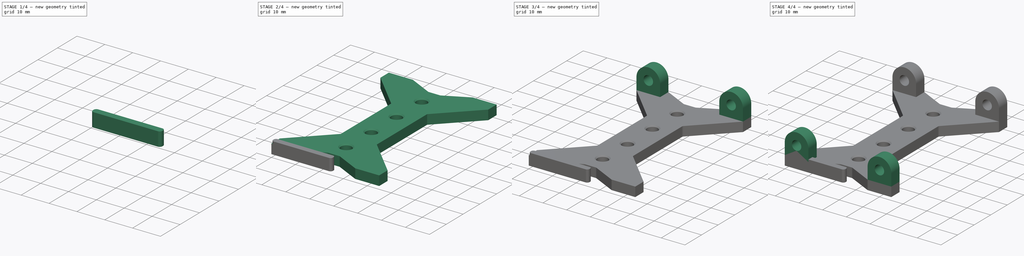
[diagram: build sequence overview — one tinted view per stage of 4, left to right]
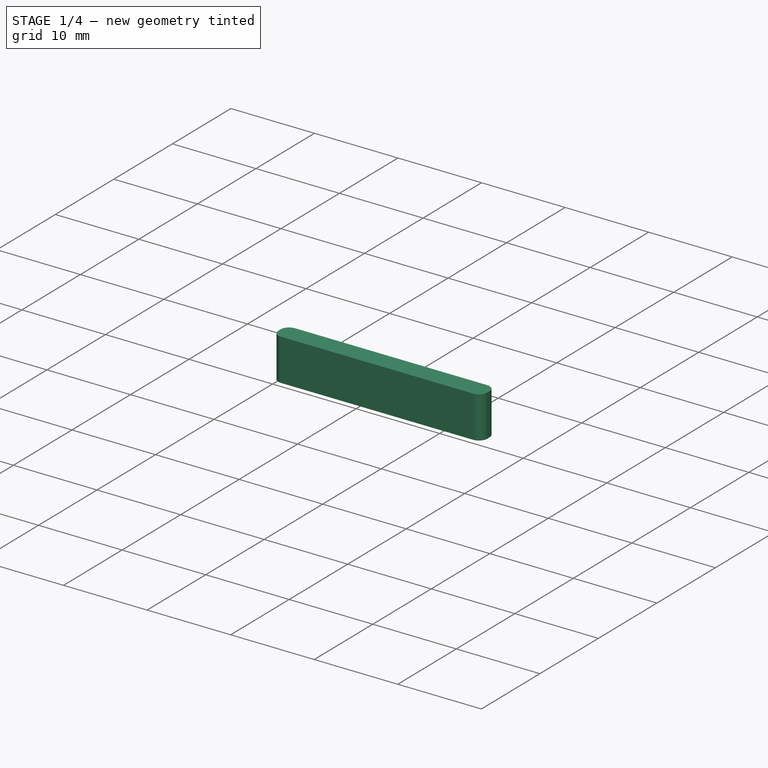
[diagram: stage 1 of 4 — iso view after this stage's code; geometry added in this stage tinted green]
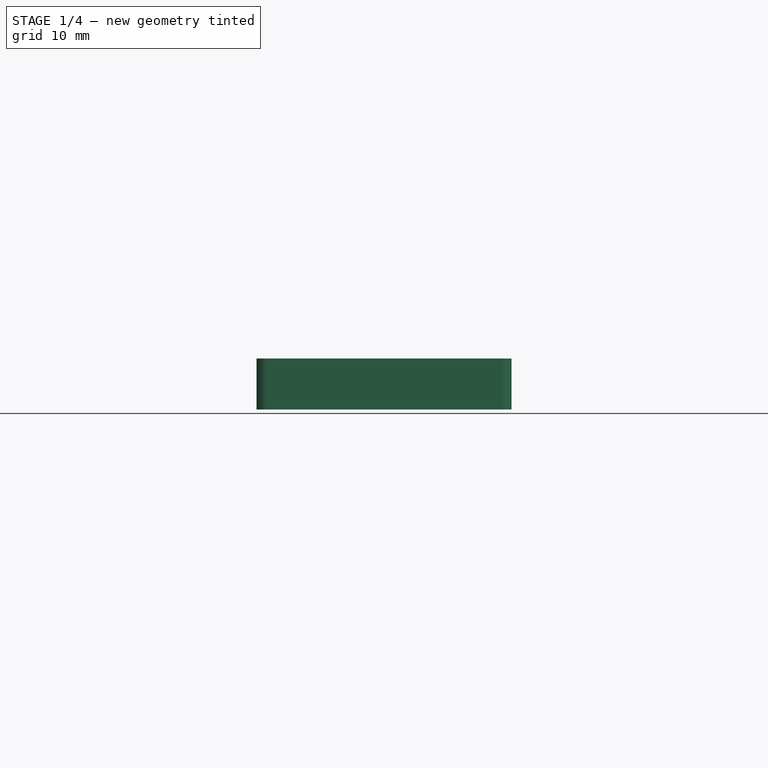
[diagram: stage 1 of 4 — front view after this stage's code; geometry added in this stage tinted green]
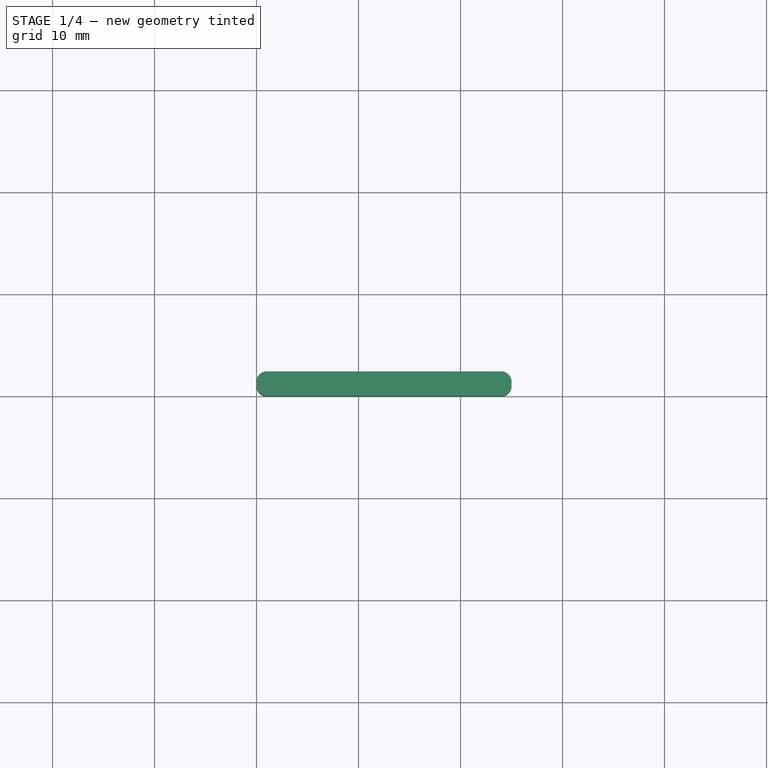
[diagram: stage 1 of 4 — top view after this stage's code; geometry added in this stage tinted green]
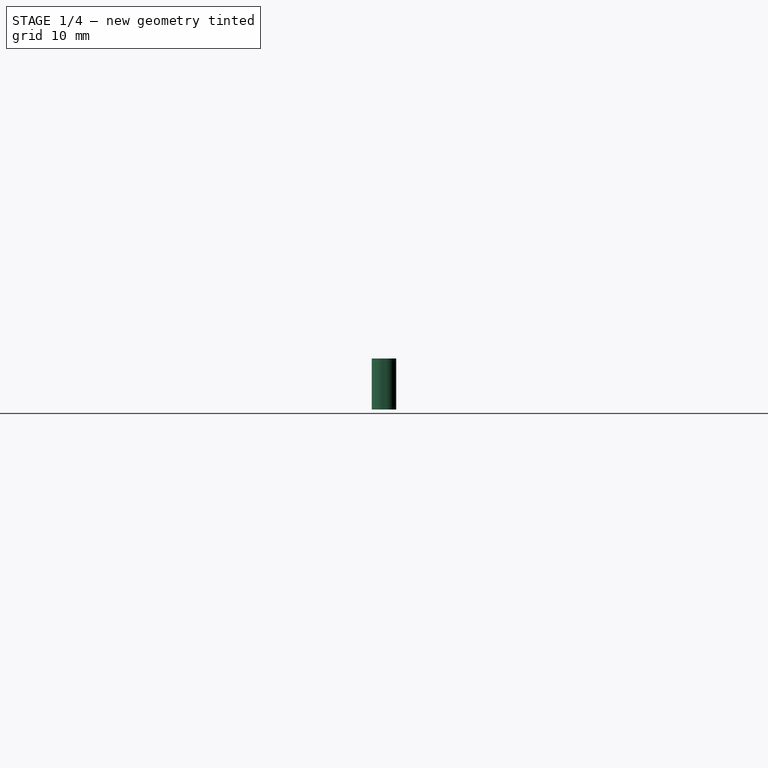
[diagram: stage 1 of 4 — right view after this stage's code; geometry added in this stage tinted green]
FCSTD DOCUMENT  (FreeCAD 0.19R24291 (Git))
Label: plotter-e-carridge
License: All rights reserved
LicenseURL: http://en.wikipedia.org/wiki/All_rights_reserved
objects: Part::Extrusion×4, Sketcher::SketchObject×3, PartDesign::Pad×2, PartDesign::Fillet×2, PartDesign::Body×2, PartDesign::Chamfer×1, App::Part×1
note: 19 computed .brp shape members not serialized (recipe doc carries the construction recipe); baked Part::Feature solids carry a one-line shape summary decoded from their .brp

FEATURE [PartDesign::Body] Body  label="CarridgeFrame"
  Group = -> [Sketch003,Pad,Chamfer,Fillet]
  Origin = -> Origin
  Tip = -> Fillet
FEATURE [Sketcher::SketchObject] Sketch004  label="ServoRidgeSketch"
  FullyConstrained = true
  MapMode = 5
  Placement = pos=(0,0,0) rot=(1,0,0;1.5708rad)
  sketch-geometry (4):
    g0: LineSegment StartX=0 StartY=0 StartZ=0 EndX=25 EndY=0 EndZ=0
    g1: LineSegment StartX=25 StartY=0 StartZ=0 EndX=25 EndY=5 EndZ=0
    g2: LineSegment StartX=25 StartY=5 StartZ=0 EndX=0 EndY=5 EndZ=0
    g3: LineSegment StartX=0 StartY=5 StartZ=0 EndX=0 EndY=0 EndZ=0
  constraints (11):
    c: Coincident(g0,g1)
    c: Coincident(g1,g2)
    c: Coincident(g2,g3)
    c: Coincident(g3,g0)
    c: Horizontal(g0)
    c: Horizontal(g2)
    c: Vertical(g1)
    c: Vertical(g3)
    c: Coincident(g-1,g0)
    c: DistanceX(g2,g2) = 25
    c: DistanceY(g1,g1) = 5
FEATURE [PartDesign::Pad] Pad001  label="ServoRidgePad"
  AllowMultiFace = false
  Direction = (1,1,1)
  Length = 2.4
  Length2 = 100
  Placement = pos=(0,0,0) rot=(1,0,0;1.5708rad)
  Profile = -> Sketch004
  Reversed = true
  Type = 0
FEATURE [PartDesign::Fillet] Fillet001  label="ServoRidgeFillet"
  Base = -> Pad001 [Edge12,Edge11,Edge7,Edge6]
  BaseFeature = -> Pad001
  Placement = pos=(0,0,0) rot=(1,0,0;1.5708rad)
  Radius = 1
  SupportTransform = false
FEATURE [PartDesign::Body] Body001  label="ServoRidge"
  Group = -> [Sketch004,Pad001,Fillet001]
  Origin = -> Origin005
  Placement = pos=(10,7.4,4) rot=(0,0,1;0rad)
  Tip = -> Fillet001
FEATURE [App::Part] Part  label="ECarridge"
  Group = -> [Sketch,Extrude001,Extrude002,Extrude003,Extrude004,Body,Body001]
  Origin = -> Origin004
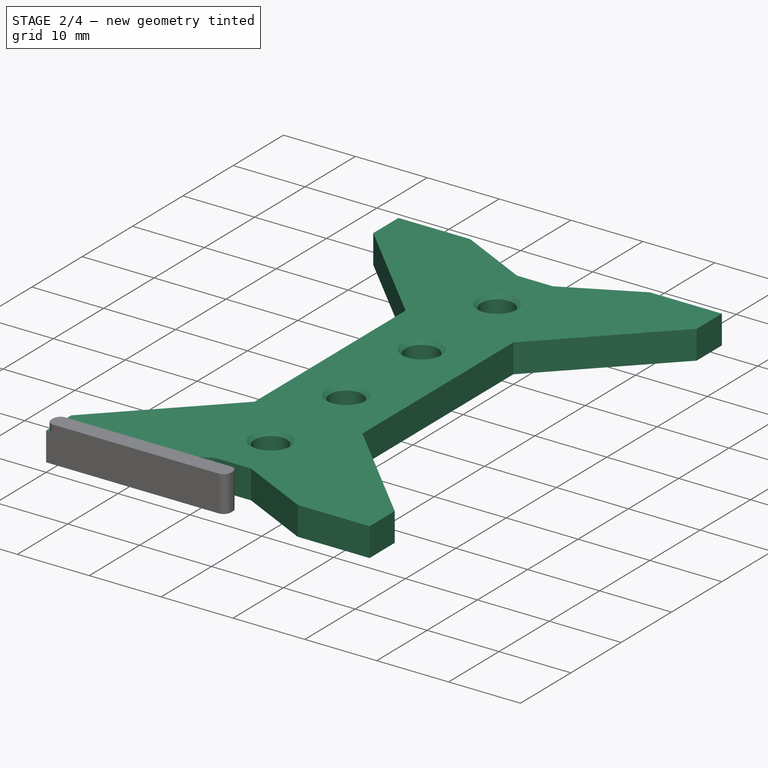
[diagram: stage 2 of 4 — iso view after this stage's code; geometry added in this stage tinted green]
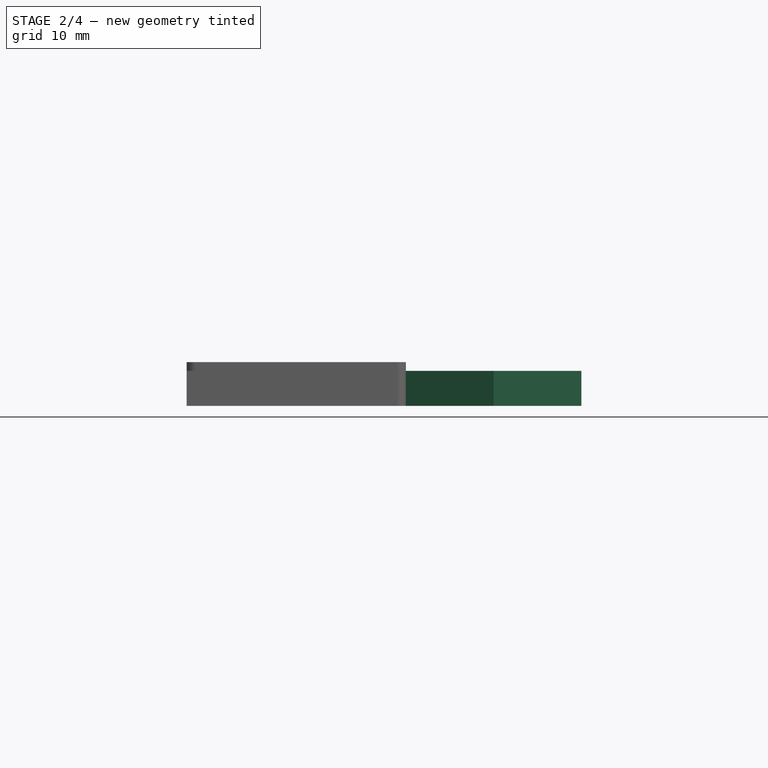
[diagram: stage 2 of 4 — front view after this stage's code; geometry added in this stage tinted green]
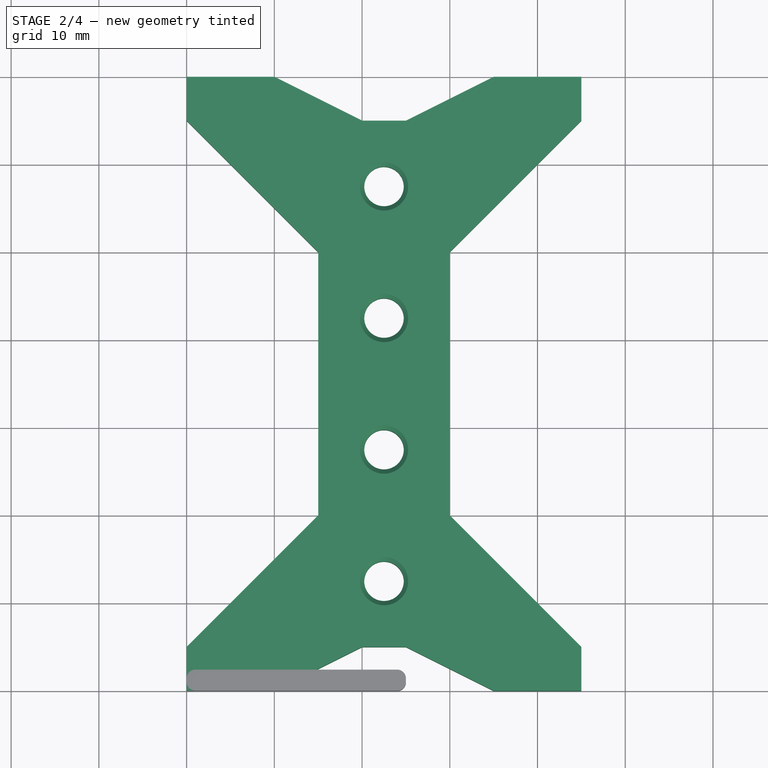
[diagram: stage 2 of 4 — top view after this stage's code; geometry added in this stage tinted green]
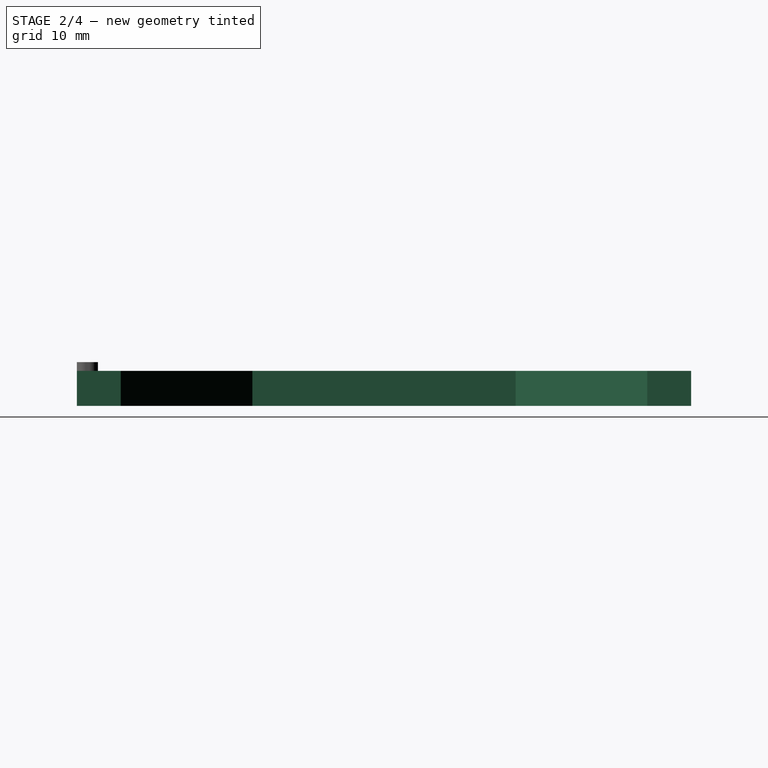
[diagram: stage 2 of 4 — right view after this stage's code; geometry added in this stage tinted green]
FEATURE [Sketcher::SketchObject] Sketch003  label="CarridgeFrameSketch"
  FullyConstrained = true
  MapMode = 5
  expr: Constraints[66] = .Constraints.Width / 2
  sketch-geometry (24):
    g0: LineSegment StartX=0 StartY=0 StartZ=0 EndX=10 EndY=0 EndZ=0
    g1: LineSegment StartX=10 StartY=0 StartZ=0 EndX=20 EndY=5 EndZ=0
    g2: LineSegment StartX=20 StartY=5 StartZ=0 EndX=25 EndY=5 EndZ=0
    g3: LineSegment StartX=25 StartY=5 StartZ=0 EndX=35 EndY=0 EndZ=0
    g4: LineSegment StartX=35 StartY=0 StartZ=0 EndX=45 EndY=0 EndZ=0
    g5: LineSegment StartX=45 StartY=0 StartZ=0 EndX=45 EndY=5 EndZ=0
    g6: LineSegment StartX=45 StartY=5 StartZ=0 EndX=30 EndY=20 EndZ=0
    g7: LineSegment StartX=30 StartY=20 StartZ=0 EndX=30 EndY=50 EndZ=0
    g8: LineSegment StartX=30 StartY=50 StartZ=0 EndX=45 EndY=65 EndZ=0
    g9: LineSegment StartX=45 StartY=65 StartZ=0 EndX=45 EndY=70 EndZ=0
    g10: LineSegment StartX=45 StartY=70 StartZ=0 EndX=35 EndY=70 EndZ=0
    g11: LineSegment StartX=35 StartY=70 StartZ=0 EndX=25 EndY=65 EndZ=0
    g12: LineSegment StartX=25 StartY=65 StartZ=0 EndX=20 EndY=65 EndZ=0
    g13: LineSegment StartX=20 StartY=65 StartZ=0 EndX=10 EndY=70 EndZ=0
    g14: LineSegment StartX=10 StartY=70 StartZ=0 EndX=0 EndY=70 EndZ=0
    g15: LineSegment StartX=0 StartY=70 StartZ=0 EndX=0 EndY=65 EndZ=0
    g16: LineSegment StartX=0 StartY=65 StartZ=0 EndX=15 EndY=50 EndZ=0
    g17: LineSegment StartX=15 StartY=50 StartZ=0 EndX=15 EndY=20 EndZ=0
    g18: LineSegment StartX=15 StartY=20 StartZ=0 EndX=0 EndY=5 EndZ=0
    g19: LineSegment StartX=0 StartY=5 StartZ=0 EndX=0 EndY=0 EndZ=0
    g20: Circle CenterX=22.5 CenterY=57.5 CenterZ=0 NormalX=0 NormalY=0 NormalZ=1 AngleXU=0 Radius=2.25
    g21: Circle CenterX=22.5 CenterY=42.5 CenterZ=0 NormalX=0 NormalY=0 NormalZ=1 AngleXU=0 Radius=2.25
    g22: Circle CenterX=22.5 CenterY=27.5 CenterZ=0 NormalX=0 NormalY=0 NormalZ=1 AngleXU=0 Radius=2.25
    g23: Circle CenterX=22.5 CenterY=12.5 CenterZ=0 NormalX=0 NormalY=0 NormalZ=1 AngleXU=0 Radius=2.25
  constraints (71):
    c: Coincident(g-1,g0)
    c: Horizontal(g0)
    c: Coincident(g0,g1)
    c: Coincident(g1,g2)
    c: Horizontal(g2)
    c: Coincident(g2,g3)
    c: PointOnObject(g3,g-1)
    c: Coincident(g3,g4)
    c: Horizontal(g4)
    c: Coincident(g4,g5)
    c: Vertical(g5)
    c: Coincident(g5,g6)
    c: Coincident(g6,g7)
    c: Vertical(g7)
    c: Coincident(g7,g8)
    c: Coincident(g8,g9)
    c: Vertical(g9)
    c: Coincident(g9,g10)
    c: Coincident(g10,g11)
    c: Coincident(g11,g12)
    c: Horizontal(g12)
    c: Coincident(g12,g13)
    c: Coincident(g13,g14)
    c: Horizontal(g14)
    c: Coincident(g14,g15)
    c: PointOnObject(g15,g-2)
    c: Coincident(g15,g16)
    c: Coincident(g16,g17)
    c: Vertical(g17)
    c: Coincident(g17,g18)
    c: Coincident(g19,g0)
    c: Vertical(g19)
    c: DistanceX(g0,g0) = 10  'RodHolderLength'
    c: DistanceY(g17,g17) = 30  'InnerSectionHeight'
    c: DistanceY(g19,g19) = 5  'RodHolderHeight'
    c: DistanceX(g2,g2) = 5  'InnerSectionLength'
    c: Equal(g0,g4)
    c: Equal(g0,g10)
    c: Equal(g0,g14)
    c: Equal(g2,g12)
    c: Equal(g17,g7)
    c: Equal(g19,g5)
    c: Equal(g5,g9)
    c: Equal(g9,g15)
    c: Parallel(g9,g15)
    c: Parallel(g0,g10)
    c: DistanceX(g17,g6) = 15
    c: DistanceY(g1,g12) = 60
    c: DistanceY(g0,g14) = 70  'Height'
    c: DistanceX(g0,g4) = 45  'Width'
    c: Coincident(g19,g18)
    c: Horizontal(g18,g1)
    c: Horizontal(g14,g10)
    c: Vertical(g4,g9)
    c: DistanceX(g18,g1) = 20
    c: Vertical(g1,g12)
    c: DistanceY(g0,g17) = 20
    c: Horizontal(g16,g7)
    c: DistanceX(g0,g17) = 15
    c: Vertical(g20,g21)
    c: Vertical(g21,g22)
    c: Vertical(g22,g23)
    c: Diameter(g20) = 4.5
    c: Equal(g20,g21)
    c: Equal(g20,g22)
    c: Equal(g20,g23)
    c: DistanceX(g15,g20) = 22.5
    c: DistanceY(g23,g22) = 15
    c: DistanceY(g22,g21) = 15
    c: DistanceY(g21,g20) = 15
    c: DistanceY(g20,g10) = 12.5
FEATURE [PartDesign::Pad] Pad  label="CarridgeFramePad"
  AllowMultiFace = false
  Direction = (1,1,1)
  Length = 4
  Length2 = 100
  Profile = -> Sketch003
  Type = 0
FEATURE [PartDesign::Chamfer] Chamfer  label="CarridgeFrameChamfer"
  Angle = 45
  Base = -> Pad [Edge63,Edge66,Edge69,Edge72]
  BaseFeature = -> Pad
  ChamferType = 0
  FlipDirection = false
  Size = 0.5
  Size2 = 1
  SupportTransform = false
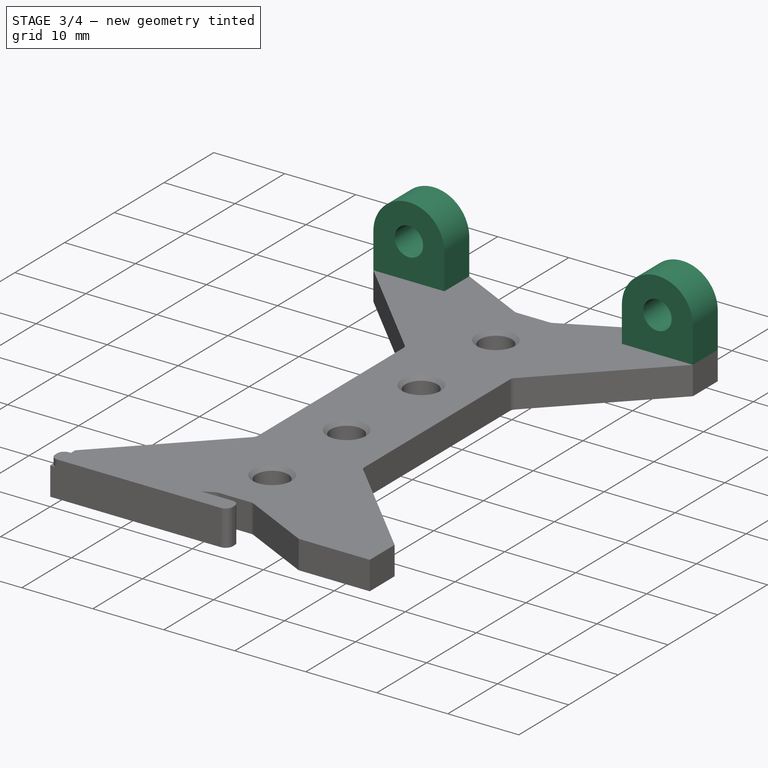
[diagram: stage 3 of 4 — iso view after this stage's code; geometry added in this stage tinted green]
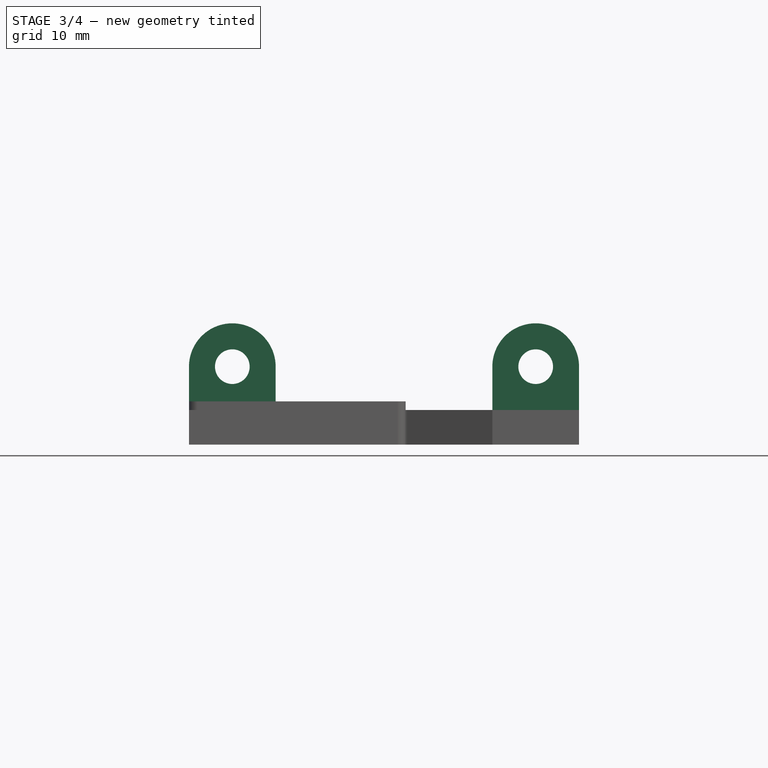
[diagram: stage 3 of 4 — front view after this stage's code; geometry added in this stage tinted green]
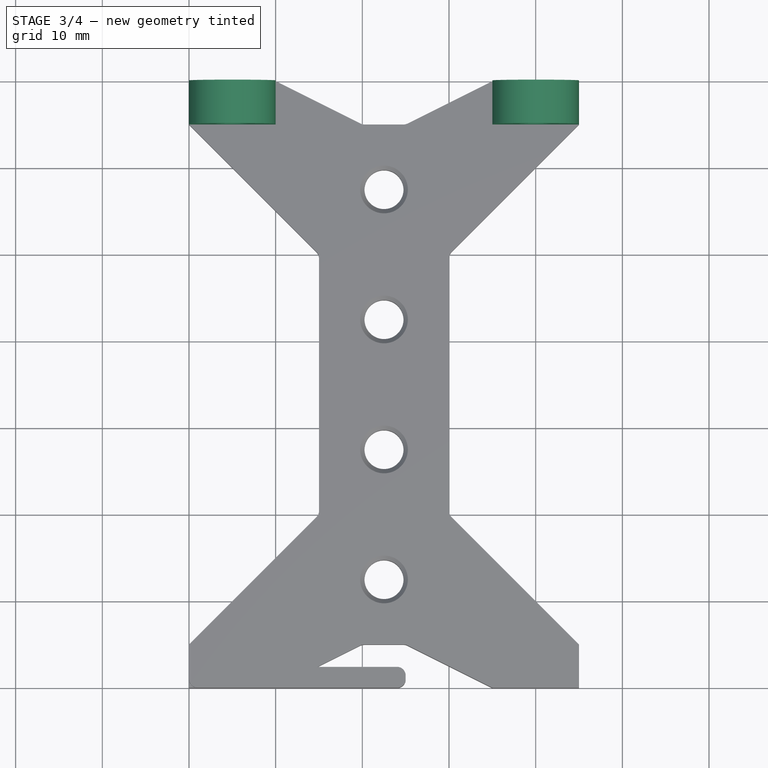
[diagram: stage 3 of 4 — top view after this stage's code; geometry added in this stage tinted green]
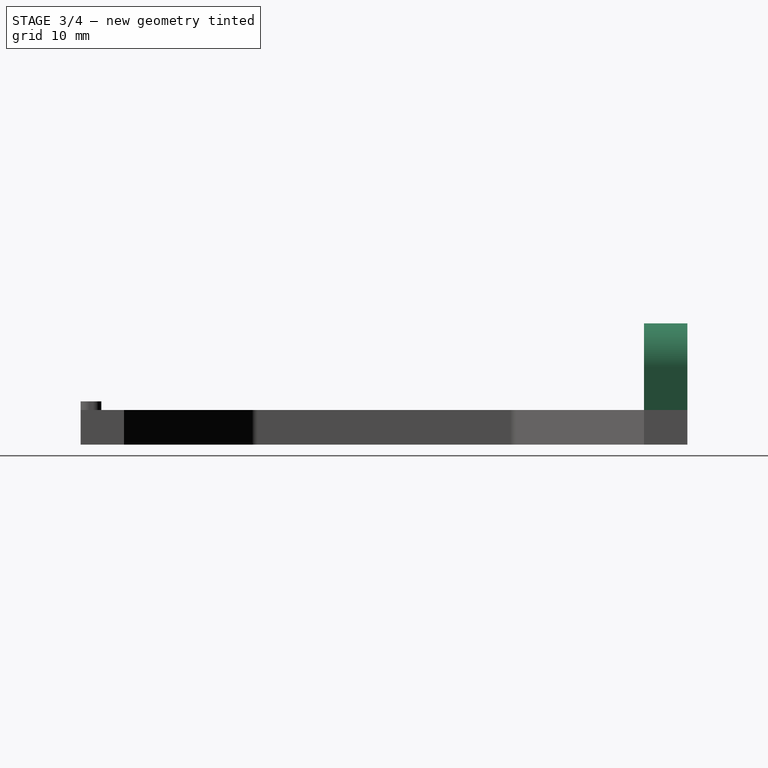
[diagram: stage 3 of 4 — right view after this stage's code; geometry added in this stage tinted green]
FEATURE [Part::Extrusion] Extrude003  label="RodHolder3"
  Base = -> Sketch
  Dir = (0,-1,2e-16)
  DirMode = 2
  FaceMakerClass = Part::FaceMakerBullseye
  LengthFwd = 5
  LengthRev = 0
  Placement = pos=(0,65,4) rot=(0,0,1;0rad)
  Reversed = true
  Solid = true
  Symmetric = false
FEATURE [Part::Extrusion] Extrude004  label="RodHolder4"
  Base = -> Sketch
  Dir = (0,-1,2e-16)
  DirMode = 2
  FaceMakerClass = Part::FaceMakerBullseye
  LengthFwd = 5
  LengthRev = 0
  Placement = pos=(35,65,4) rot=(0,0,1;0rad)
  Reversed = true
  Solid = true
  Symmetric = false
FEATURE [PartDesign::Fillet] Fillet  label="CarridgeFrameFillet"
  Base = -> Chamfer [Edge69,Edge70,Edge59,Edge60,Edge64,Edge65,Edge55,Edge54]
  BaseFeature = -> Chamfer
  Radius = 1
  SupportTransform = false
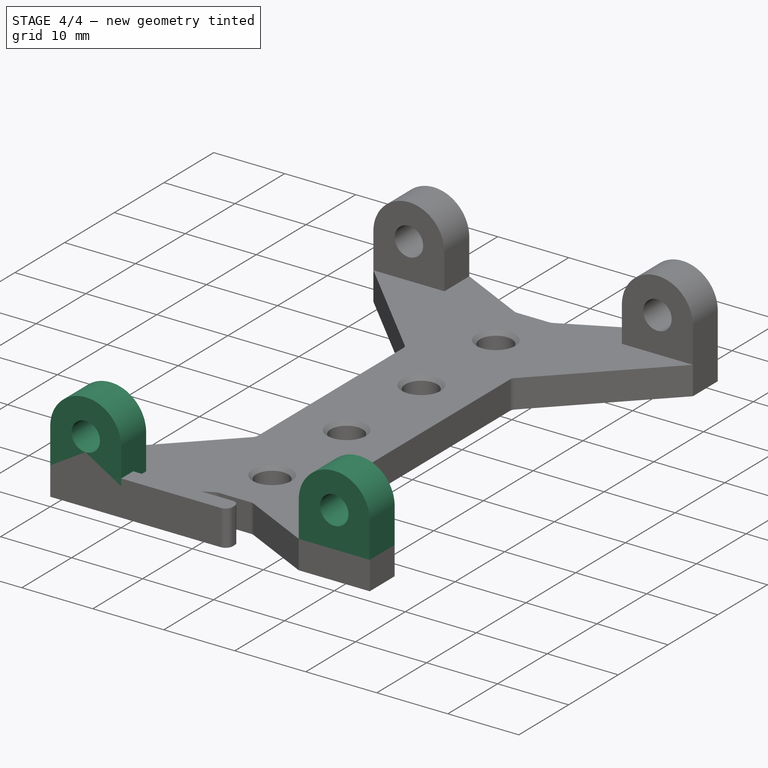
[diagram: stage 4 of 4 — iso view after this stage's code; geometry added in this stage tinted green]
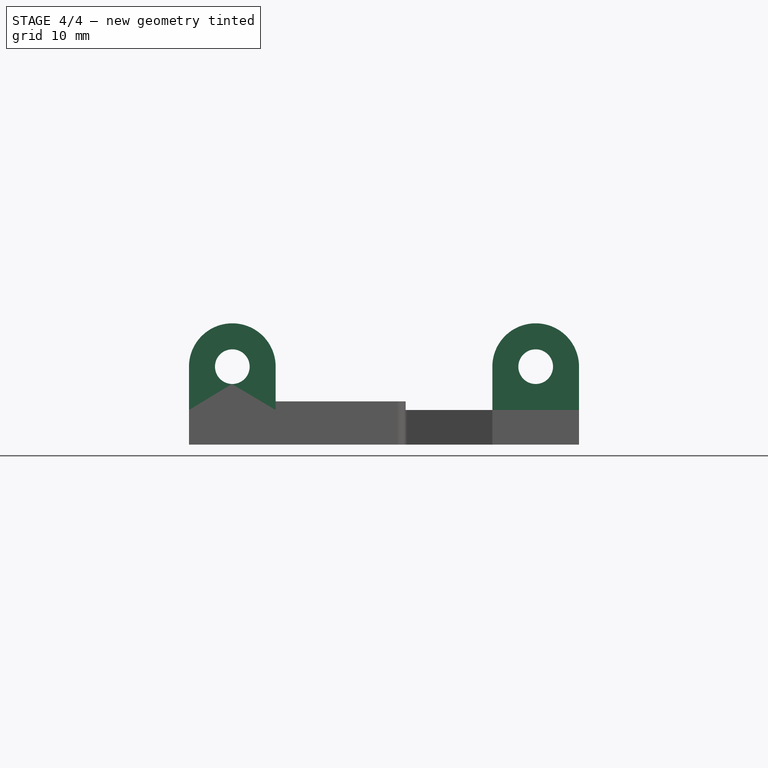
[diagram: stage 4 of 4 — front view after this stage's code; geometry added in this stage tinted green]
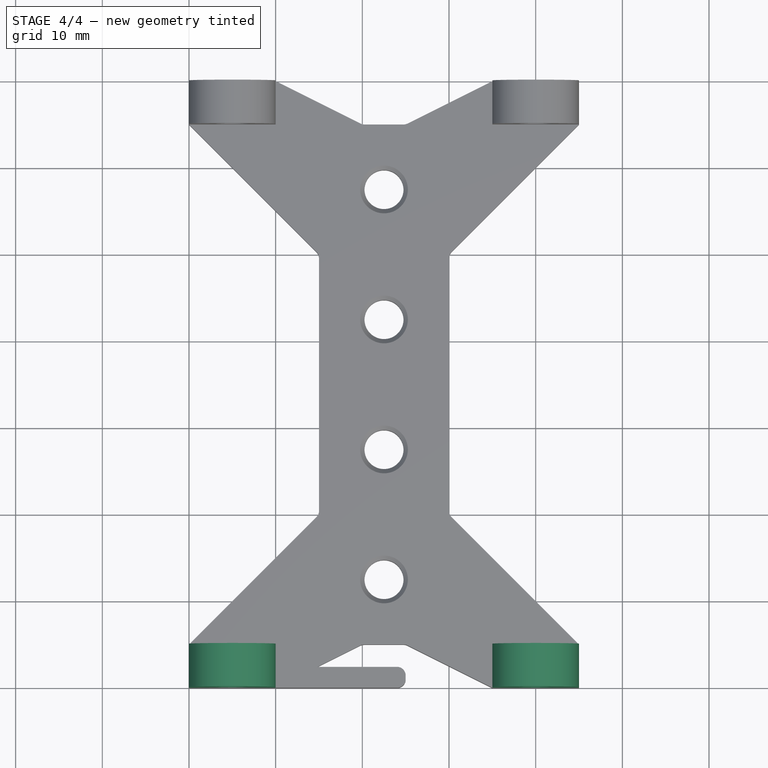
[diagram: stage 4 of 4 — top view after this stage's code; geometry added in this stage tinted green]
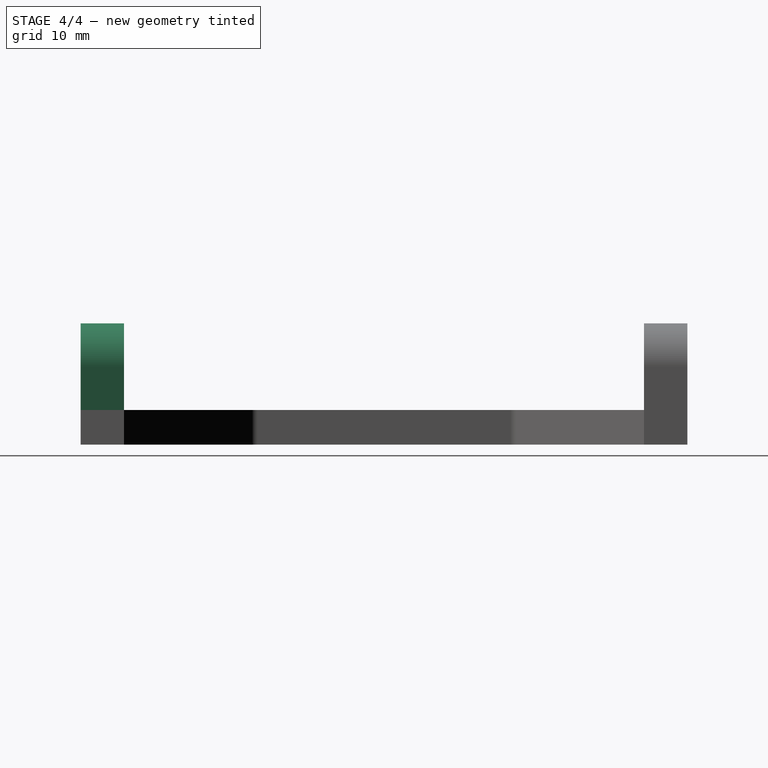
[diagram: stage 4 of 4 — right view after this stage's code; geometry added in this stage tinted green]
FEATURE [Sketcher::SketchObject] Sketch  label="RodHolderSketch"
  FullyConstrained = true
  MapMode = 5
  Placement = pos=(0,0,0) rot=(1,0,0;1.5708rad)
  sketch-geometry (5):
    g0: LineSegment StartX=0 StartY=5 StartZ=0 EndX=0 EndY=0 EndZ=0
    g1: LineSegment StartX=0 StartY=0 StartZ=0 EndX=10 EndY=0 EndZ=0
    g2: LineSegment StartX=10 StartY=0 StartZ=0 EndX=10 EndY=5 EndZ=0
    g3: ArcOfCircle CenterX=5 CenterY=5 CenterZ=0 NormalX=0 NormalY=0 NormalZ=1 AngleXU=0 Radius=5 StartAngle=0 EndAngle=3.14159
    g4: Circle CenterX=5 CenterY=5 CenterZ=0 NormalX=0 NormalY=0 NormalZ=1 AngleXU=0 Radius=2
  constraints (14):
    c: PointOnObject(g0,g-2)
    c: Coincident(g0,g-1)
    c: Coincident(g0,g1)
    c: Horizontal(g1)
    c: Coincident(g1,g2)
    c: Vertical(g2)
    c: Coincident(g3,g2)
    c: Coincident(g3,g0)
    c: Coincident(g4,g3)
    c: DistanceX(g1,g1) = 10
    c: DistanceY(g2,g2) = 5
    c: Equal(g2,g0)
    c: Horizontal(g2,g3)
    c: Diameter(g4) = 4
FEATURE [Part::Extrusion] Extrude001  label="RodHolder1"
  Base = -> Sketch
  Dir = (0,-1,2e-16)
  DirMode = 2
  FaceMakerClass = Part::FaceMakerBullseye
  LengthFwd = 5
  LengthRev = 0
  Placement = pos=(0,0,4) rot=(0,0,1;0rad)
  Reversed = true
  Solid = true
  Symmetric = false
FEATURE [Part::Extrusion] Extrude002  label="RodHolder2"
  Base = -> Sketch
  Dir = (0,-1,2e-16)
  DirMode = 2
  FaceMakerClass = Part::FaceMakerBullseye
  LengthFwd = 5
  LengthRev = 0
  Placement = pos=(35,0,4) rot=(0,0,1;0rad)
  Reversed = true
  Solid = true
  Symmetric = false
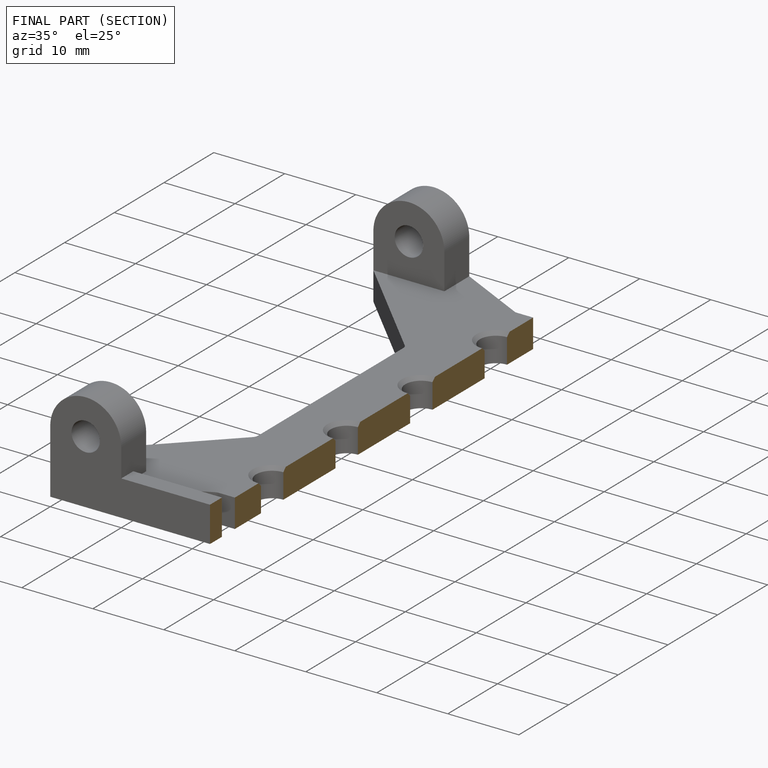
[diagram: finished part — half-section view (interior)]
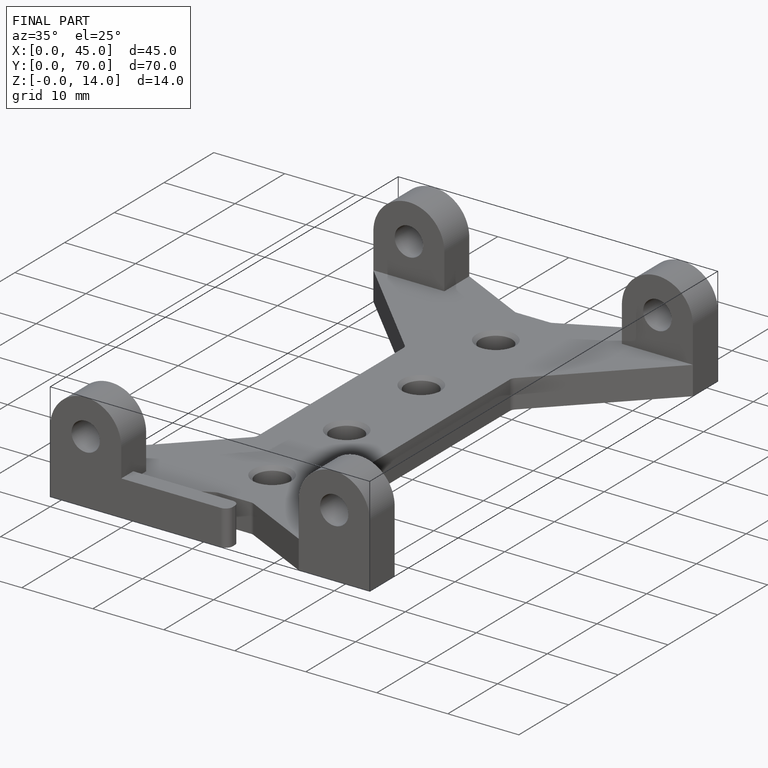
[diagram: finished part — iso view with bounding-box wireframe]
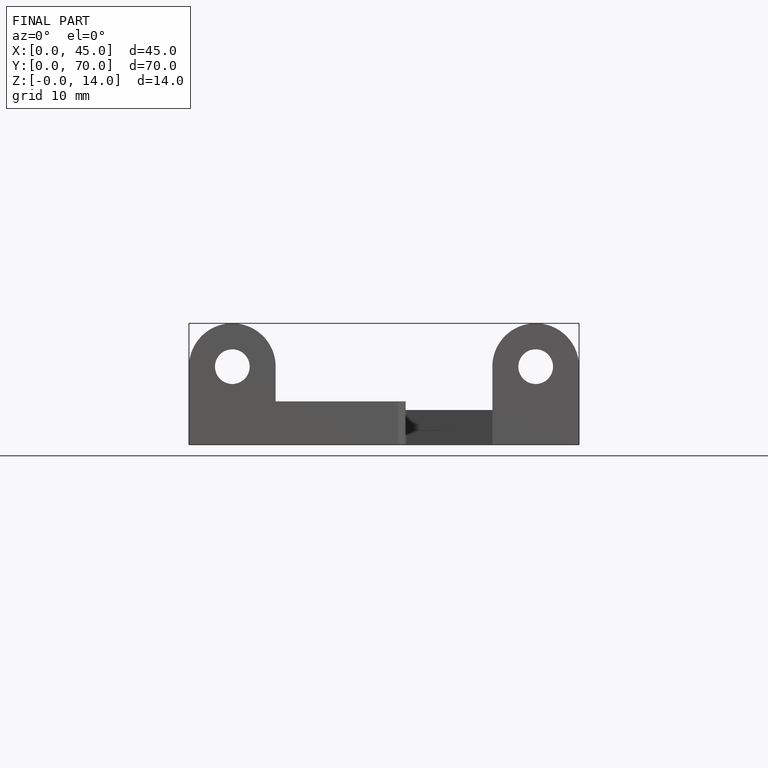
[diagram: finished part — front view with bounding-box wireframe]
